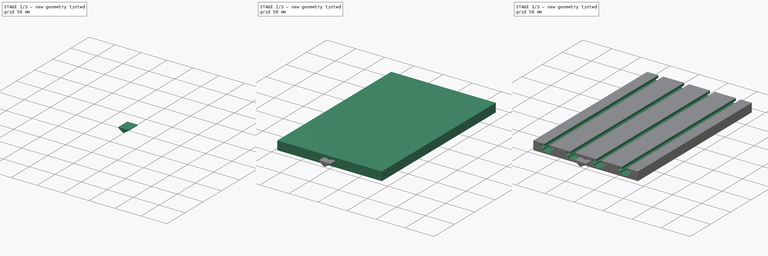
[diagram: build sequence overview — one tinted view per stage of 3, left to right]
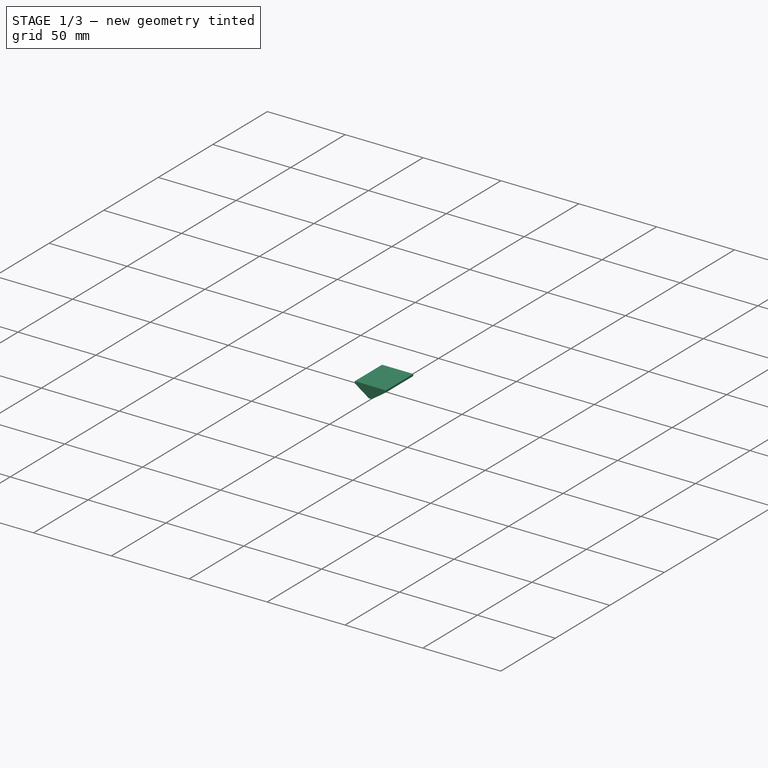
[diagram: stage 1 of 3 — iso view after this stage's code; geometry added in this stage tinted green]
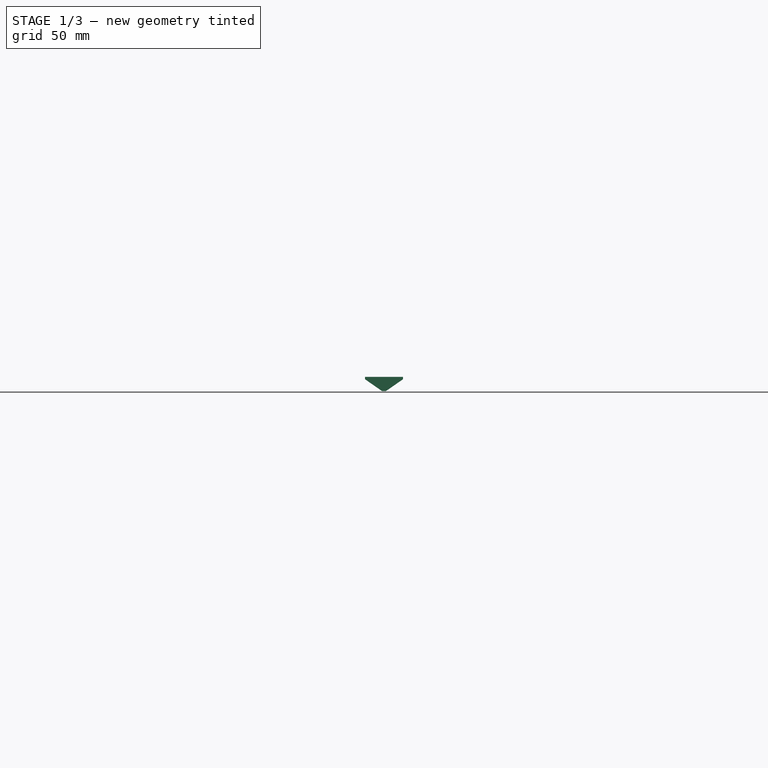
[diagram: stage 1 of 3 — front view after this stage's code; geometry added in this stage tinted green]
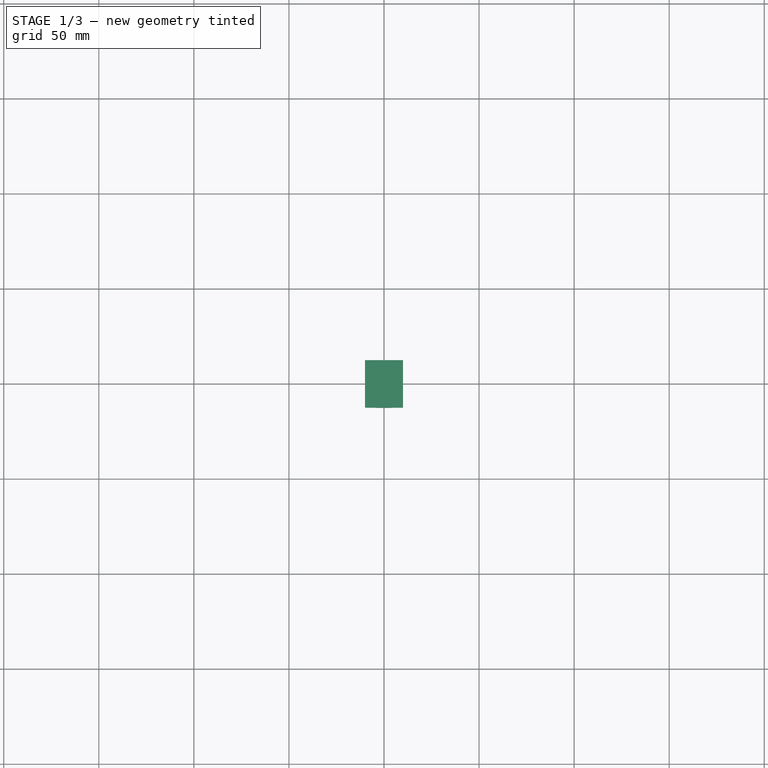
[diagram: stage 1 of 3 — top view after this stage's code; geometry added in this stage tinted green]
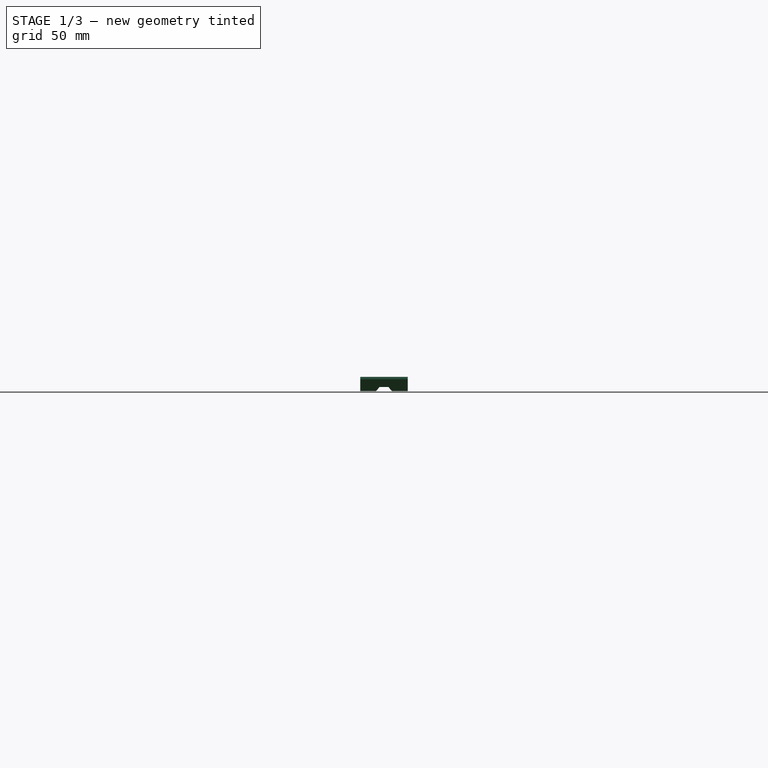
[diagram: stage 1 of 3 — right view after this stage's code; geometry added in this stage tinted green]
FCSTD DOCUMENT  (FreeCAD 0.18R4 (GitTag))
Label: cnc_m5_sliding_nut
License: All rights reserved
LicenseURL: http://en.wikipedia.org/wiki/All_rights_reserved
objects: Sketcher::SketchObject×5, PartDesign::Pocket×3, PartDesign::Pad×2, PartDesign::Body×2, PartDesign::LinearPattern×1, PartDesign::Chamfer×1
note: 19 computed .brp shape members not serialized (recipe doc carries the construction recipe); baked Part::Feature solids carry a one-line shape summary decoded from their .brp

FEATURE [PartDesign::Body] Body
  Group = -> [Sketch,Sketch001,Pad,Pocket,LinearPattern]
  Origin = -> Origin
  Tip = -> LinearPattern
FEATURE [Sketcher::SketchObject] Sketch002
  MapMode = 5
  Placement = pos=(0,0,0) rot=(1,0,0;1.5708rad)
  Support = -> [XZ_Plane001]
  sketch-geometry (8):
    g0: LineSegment StartX=-10 StartY=-5.73695 StartZ=0 EndX=-1 EndY=-12 EndZ=0
    g1: LineSegment StartX=-1 StartY=-12 StartZ=0 EndX=1 EndY=-12 EndZ=0
    g2: LineSegment StartX=1 StartY=-12 StartZ=0 EndX=10 EndY=-5.73695 EndZ=0
    g3: LineSegment StartX=10 StartY=-5.73695 StartZ=0 EndX=10 EndY=-4.5 EndZ=0
    g4: LineSegment StartX=10 StartY=-4.5 StartZ=0 EndX=-10 EndY=-4.5 EndZ=0
    g5: LineSegment StartX=-10 StartY=-4.5 StartZ=0 EndX=-10 EndY=-5.73695 EndZ=0
    g6: LineSegment [constr] StartX=-1 StartY=-12 StartZ=0 EndX=0 EndY=0 EndZ=0
    g7: LineSegment [constr] StartX=0 StartY=0 StartZ=0 EndX=1 EndY=-12 EndZ=0
  constraints (21):
    c: Coincident(g0,g1)
    c: Horizontal(g1)
    c: Coincident(g1,g2)
    c: Coincident(g2,g3)
    c: Coincident(g3,g4)
    c: Horizontal(g4)
    c: Coincident(g4,g5)
    c: Coincident(g5,g0)
    c: Vertical(g5)
    c: Vertical(g3)
    c: Equal(g3,g5)
    c: Equal(g0,g2)
    c: Coincident(g6,g0)
    c: Coincident(g6,g-1)
    c: Coincident(g7,g-1)
    c: Coincident(g7,g1)
    c: Equal(g7,g6)
    c: DistanceY(g0,g-1) = 12
    c: DistanceX(g4,g4) = 20
    c: DistanceX(g1,g1) = 2
    c: DistanceY(g4,g-1) = 4.5
FEATURE [PartDesign::Pad] Pad001
  Length = 25
  Length2 = 100
  Midplane = true
  Placement = pos=(0,0,0) rot=(1,0,0;1.5708rad)
  Profile = -> Sketch002
  Type = 0
FEATURE [Sketcher::SketchObject] Sketch003
  MapMode = 5
  Placement = pos=(0,-8e-15,-12) rot=(1,0,0;3.14159rad)
  Support = -> [Pad001]
  sketch-geometry (7):
    g0: LineSegment StartX=0 StartY=4.73427 StartZ=0 EndX=-4.1 EndY=2.36714 EndZ=0
    g1: LineSegment StartX=-4.1 StartY=2.36714 StartZ=0 EndX=-4.1 EndY=-2.36714 EndZ=0
    g2: LineSegment StartX=-4.1 StartY=-2.36714 StartZ=0 EndX=0 EndY=-4.73427 EndZ=0
    g3: LineSegment StartX=0 StartY=-4.73427 StartZ=0 EndX=4.1 EndY=-2.36714 EndZ=0
    g4: LineSegment StartX=4.1 StartY=-2.36714 StartZ=0 EndX=4.1 EndY=2.36714 EndZ=0
    g5: LineSegment StartX=4.1 StartY=2.36714 StartZ=0 EndX=0 EndY=4.73427 EndZ=0
    g6: Circle [constr] CenterX=0 CenterY=0 CenterZ=0 NormalX=0 NormalY=0 NormalZ=1 AngleXU=0 Radius=4.73427
  constraints (16):
    c: Coincident(g0,g1)
    c: Coincident(g1,g2)
    c: Coincident(g2,g3)
    c: Coincident(g3,g4)
    c: Coincident(g4,g5)
    c: Coincident(g5,g0)
    c: Equal(g0, g1-g5) x5
    c: PointOnObject(g0,g6)
    c: PointOnObject(g1,g6)
    c: PointOnObject(g2,g6)
    c: PointOnObject(g3,g6)
    c: PointOnObject(g4,g6)
    c: PointOnObject(g5,g6)
    c: Coincident(g6,g-1)
    c: PointOnObject(g5,g-2)
    c: DistanceX(g0,g4) = 8.2
FEATURE [PartDesign::Pocket] Pocket001
  BaseFeature = -> Pad001
  Length = 5.5
  Length2 = 100
  Placement = pos=(0,0,0) rot=(1,0,0;1.5708rad)
  Profile = -> Sketch003
  Type = 0
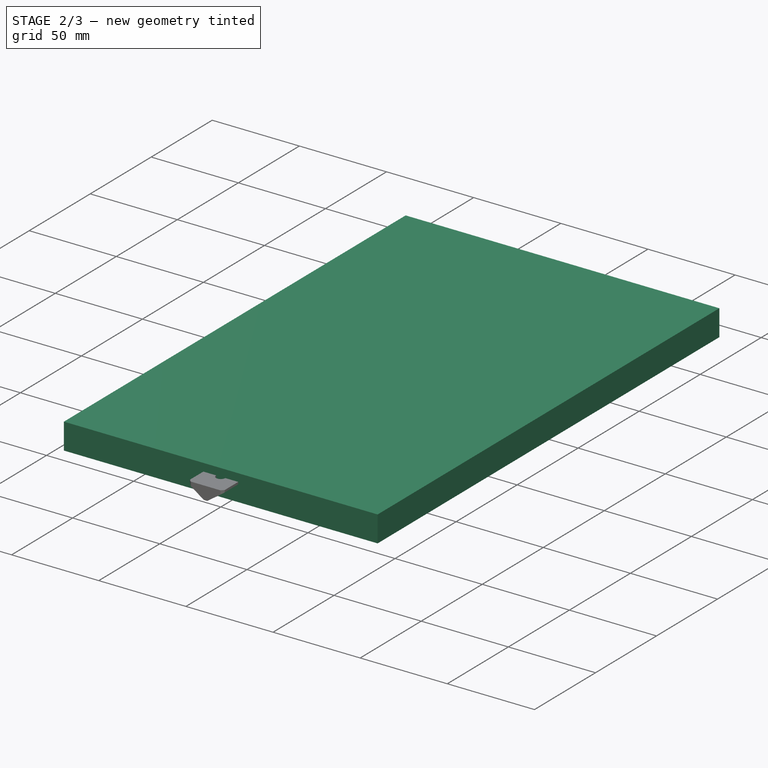
[diagram: stage 2 of 3 — iso view after this stage's code; geometry added in this stage tinted green]
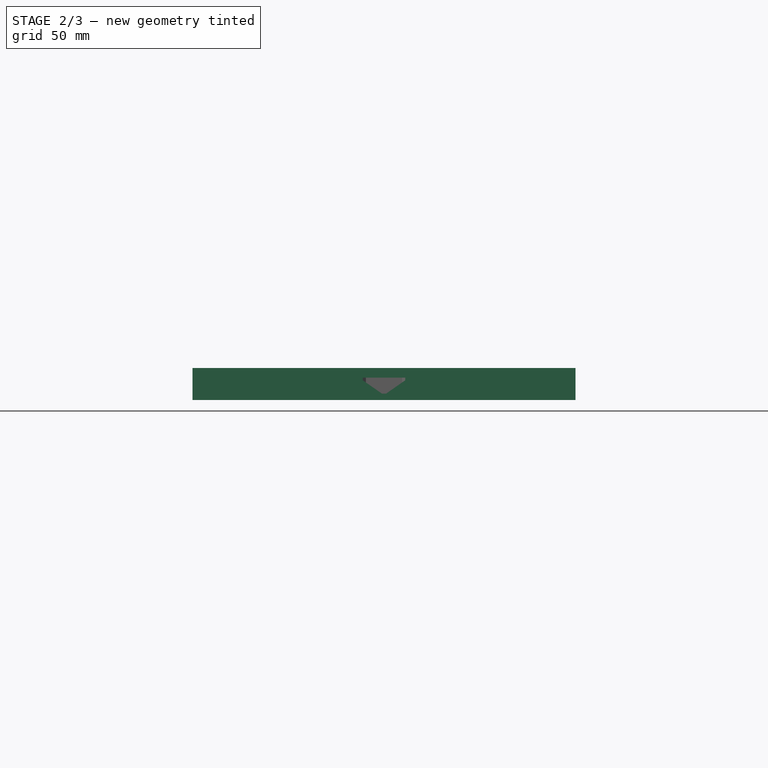
[diagram: stage 2 of 3 — front view after this stage's code; geometry added in this stage tinted green]
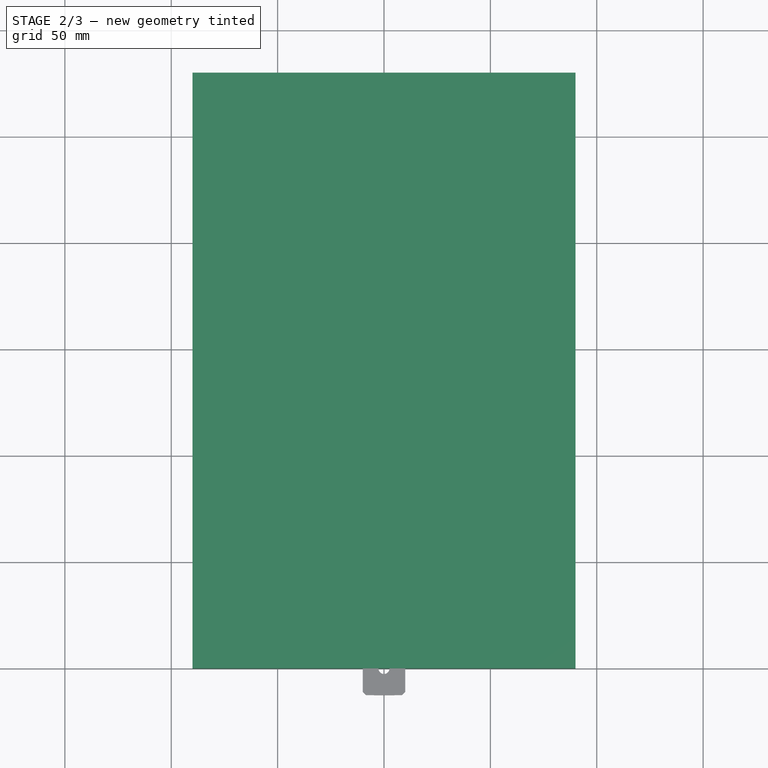
[diagram: stage 2 of 3 — top view after this stage's code; geometry added in this stage tinted green]
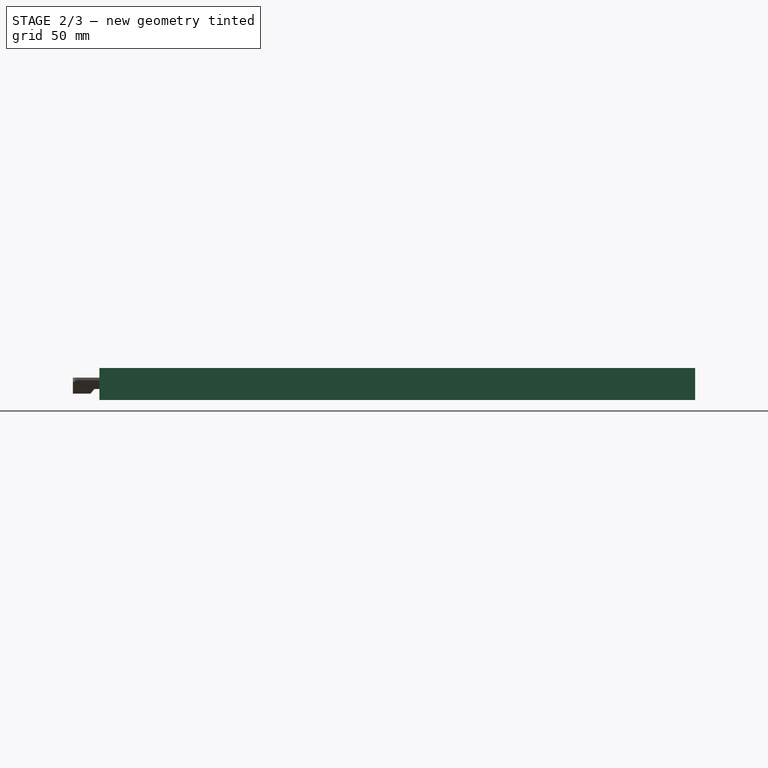
[diagram: stage 2 of 3 — right view after this stage's code; geometry added in this stage tinted green]
FEATURE [Sketcher::SketchObject] Sketch
  MapMode = 5
  Placement = pos=(0,0,0) rot=(1,0,0;1.5708rad)
  Support = -> [XZ_Plane]
  expr: Constraints[66] = 44.45 / 2 * 3
  sketch-geometry (24):
    g0: LineSegment StartX=-70.825 StartY=0 StartZ=0 EndX=-70.825 EndY=-4.2 EndZ=0
    g1: LineSegment StartX=-70.825 StartY=-4.2 StartZ=0 EndX=-73.675 EndY=-4.2 EndZ=0
    g2: LineSegment StartX=-73.675 StartY=-4.2 StartZ=0 EndX=-73.675 EndY=-2.5 EndZ=0
    g3: LineSegment StartX=-73.675 StartY=-2.5 StartZ=0 EndX=-77.975 EndY=-2.5 EndZ=0
    g4: LineSegment StartX=-77.975 StartY=-2.5 StartZ=0 EndX=-77.975 EndY=-5.7 EndZ=0
    g5: LineSegment StartX=-77.975 StartY=-5.7 StartZ=0 EndX=-73.975 EndY=-8.8 EndZ=0
    g6: LineSegment StartX=-73.975 StartY=-8.8 StartZ=0 EndX=-73.975 EndY=-11.2 EndZ=0
    g7: LineSegment StartX=-73.975 StartY=-11.2 StartZ=0 EndX=-70.875 EndY=-11.2 EndZ=0
    g8: LineSegment StartX=-70.875 StartY=-11.2 StartZ=0 EndX=-68.375 EndY=-12.6 EndZ=0
    g9: LineSegment StartX=-68.375 StartY=-12.6 StartZ=0 EndX=-64.975 EndY=-12.6 EndZ=0
    g10: LineSegment StartX=-64.975 StartY=-12.6 StartZ=0 EndX=-62.475 EndY=-11.2 EndZ=0
    g11: LineSegment StartX=-62.475 StartY=-11.2 StartZ=0 EndX=-59.375 EndY=-11.2 EndZ=0
    g12: LineSegment StartX=-59.375 StartY=-11.2 StartZ=0 EndX=-59.375 EndY=-8.8 EndZ=0
    g13: LineSegment StartX=-59.375 StartY=-8.8 StartZ=0 EndX=-55.375 EndY=-5.7 EndZ=0
    g14: LineSegment StartX=-55.375 StartY=-5.7 StartZ=0 EndX=-55.375 EndY=-2.5 EndZ=0
    g15: LineSegment StartX=-55.375 StartY=-2.5 StartZ=0 EndX=-59.675 EndY=-2.5 EndZ=0
    g16: LineSegment StartX=-59.675 StartY=-2.5 StartZ=0 EndX=-59.675 EndY=-4.2 EndZ=0
    g17: LineSegment StartX=-59.675 StartY=-4.2 StartZ=0 EndX=-62.525 EndY=-4.2 EndZ=0
    g18: LineSegment StartX=-62.525 StartY=-4.2 StartZ=0 EndX=-62.525 EndY=0 EndZ=0
    g19: LineSegment [constr] StartX=-70.825 StartY=-4.2 StartZ=0 EndX=-66.675 EndY=0 EndZ=0
    g20: LineSegment [constr] StartX=-66.675 StartY=0 StartZ=0 EndX=-62.525 EndY=-4.2 EndZ=0
    g21: LineSegment [constr] StartX=-73.975 StartY=-8.8 StartZ=0 EndX=-66.675 EndY=0 EndZ=0
    g22: LineSegment [constr] StartX=-66.675 StartY=0 StartZ=0 EndX=-59.375 EndY=-8.8 EndZ=0
    g23: LineSegment StartX=-70.825 StartY=0 StartZ=0 EndX=-62.525 EndY=0 EndZ=0
  constraints (69):
    c: PointOnObject(g0,g-1)
    c: Coincident(g0,g1)
    c: Horizontal(g1)
    c: Coincident(g1,g2)
    c: Vertical(g2)
    c: Coincident(g2,g3)
    c: Horizontal(g3)
    c: Coincident(g3,g4)
    c: Vertical(g4)
    c: Coincident(g4,g5)
    c: Coincident(g5,g6)
    c: Vertical(g6)
    c: Coincident(g6,g7)
    c: Horizontal(g7)
    c: Coincident(g7,g8)
    c: Coincident(g8,g9)
    c: Horizontal(g9)
    c: Coincident(g9,g10)
    c: Coincident(g10,g11)
    c: Horizontal(g11)
    c: Coincident(g11,g12)
    c: Vertical(g12)
    c: Coincident(g12,g13)
    c: Coincident(g13,g14)
    c: Vertical(g14)
    c: Coincident(g14,g15)
    c: Horizontal(g15)
    c: Coincident(g15,g16)
    c: Vertical(g16)
    c: Coincident(g16,g17)
    c: Horizontal(g17)
    c: Coincident(g17,g18)
    c: PointOnObject(g18,g-1)
    c: Vertical(g18)
    c: Vertical(g0)
    c: Equal(g0,g18)
    c: Equal(g17,g1)
    c: Coincident(g0,g19)
    c: PointOnObject(g19,g-1)
    c: Coincident(g19,g20)
    c: Coincident(g20,g17)
    c: Equal(g19,g20)
    c: DistanceX(g0,g18) = 8.3
    c: Equal(g2,g16)
    c: Equal(g15,g3)
    c: Equal(g4,g14)
    c: Equal(g5,g13)
    c: Coincident(g5,g21)
    c: Coincident(g21,g19)
    c: Coincident(g21,g22)
    c: Coincident(g22,g12)
    c: Equal(g21,g22)
    c: Equal(g6,g12)
    c: Equal(g7,g11)
    c: Equal(g8,g10)
    c: DistanceX(g3,g14) = 22.6
    c: DistanceX(g1,g16) = 14
    c: DistanceY(g8,g19) = 12.6
    c: DistanceX(g5,g12) = 14.6
    c: DistanceY(g7,g19) = 11.2
    c: DistanceX(g7,g10) = 8.4
    c: DistanceX(g9,g9) = 3.4
    c: DistanceY(g3,g19) = 2.5
    c: DistanceY(g0,g0) = 4.2
    c: DistanceY(g6,g6) = 2.4
    c: DistanceY(g4,g4) = 3.2
    c: DistanceX(g19,g-1) = 66.675
    c: Coincident(g23,g0)
    c: Coincident(g23,g18)
FEATURE [Sketcher::SketchObject] Sketch001
  MapMode = 5
  Placement = pos=(0,0,0) rot=(1,0,0;1.5708rad)
  Support = -> [XZ_Plane]
  sketch-geometry (6):
    g0: LineSegment StartX=-90 StartY=0 StartZ=0 EndX=90 EndY=0 EndZ=0
    g1: LineSegment StartX=90 StartY=0 StartZ=0 EndX=90 EndY=-15 EndZ=0
    g2: LineSegment StartX=90 StartY=-15 StartZ=0 EndX=-90 EndY=-15 EndZ=0
    g3: LineSegment StartX=-90 StartY=-15 StartZ=0 EndX=-90 EndY=0 EndZ=0
    g4: LineSegment [constr] StartX=-90 StartY=-15 StartZ=0 EndX=0 EndY=0 EndZ=0
    g5: LineSegment [constr] StartX=0 StartY=0 StartZ=0 EndX=90 EndY=-15 EndZ=0
  constraints (16):
    c: Coincident(g0,g1)
    c: Coincident(g1,g2)
    c: Coincident(g2,g3)
    c: Coincident(g3,g0)
    c: Horizontal(g0)
    c: Horizontal(g2)
    c: Vertical(g1)
    c: Vertical(g3)
    c: PointOnObject(g0,g-1)
    c: Coincident(g2,g4)
    c: Coincident(g4,g-1)
    c: Coincident(g4,g5)
    c: Coincident(g5,g1)
    c: Equal(g5,g4)
    c: DistanceY(g3,g3) = 15
    c: DistanceX(g0,g0) = 180
FEATURE [PartDesign::Pad] Pad
  Length = 280
  Length2 = 100
  Placement = pos=(0,0,0) rot=(1,0,0;1.5708rad)
  Profile = -> Sketch001
  Reversed = true
  Type = 0
FEATURE [Sketcher::SketchObject] Sketch004
  MapMode = 5
  Placement = pos=(0,-5e-15,-4.5) rot=(0,0,1;3.14159rad)
  Support = -> [Pocket001]
  sketch-geometry (1):
    g0: Circle CenterX=0 CenterY=0 CenterZ=0 NormalX=0 NormalY=0 NormalZ=1 AngleXU=0 Radius=2.6
  constraints (2):
    c: Coincident(g0,g-1)
    c: Diameter(g0) = 5.2
FEATURE [PartDesign::Pocket] Pocket002
  BaseFeature = -> Pocket001
  Length = 5
  Length2 = 100
  Placement = pos=(0,0,0) rot=(1,0,0;1.5708rad)
  Profile = -> Sketch004
  Type = 0
FEATURE [PartDesign::Chamfer] Chamfer
  Base = -> Pocket002 [Edge31,Edge29,Edge13,Edge11]
  BaseFeature = -> Pocket002
  Placement = pos=(0,0,0) rot=(1,0,0;1.5708rad)
  Size = 1.5
FEATURE [PartDesign::Body] Body001
  Group = -> [Sketch002,Pad001,Sketch003,Pocket001,Sketch004,Pocket002,Chamfer]
  Origin = -> Origin001
  Placement = pos=(22.225,0,0) rot=(0,0,1;0rad)
  Tip = -> Chamfer
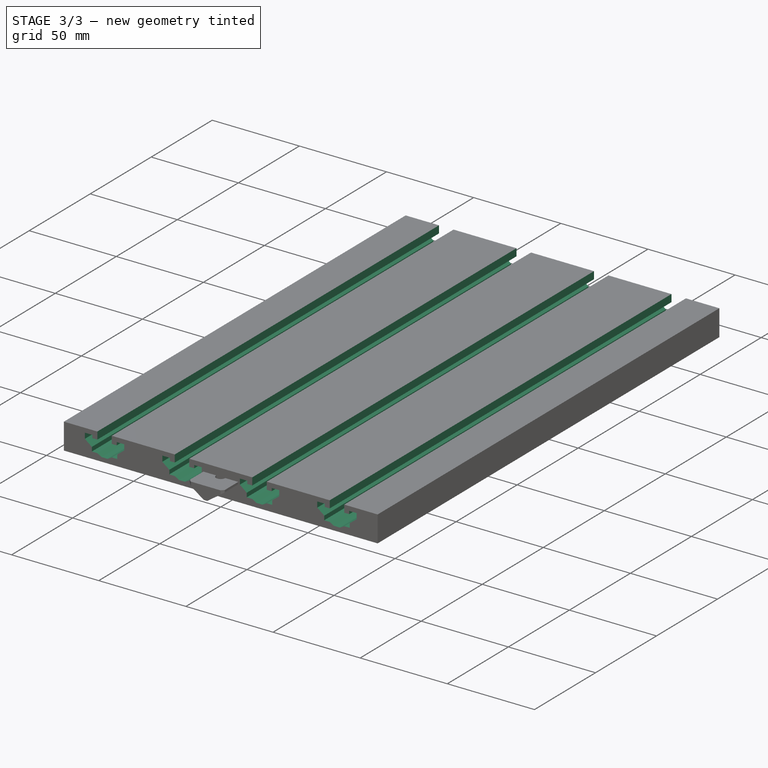
[diagram: stage 3 of 3 — iso view after this stage's code; geometry added in this stage tinted green]
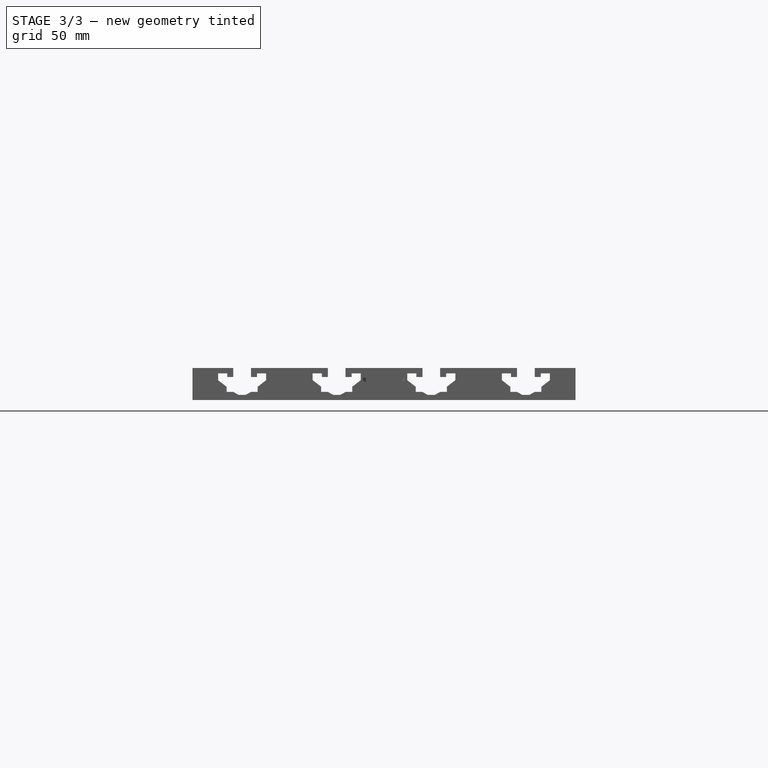
[diagram: stage 3 of 3 — front view after this stage's code; geometry added in this stage tinted green]
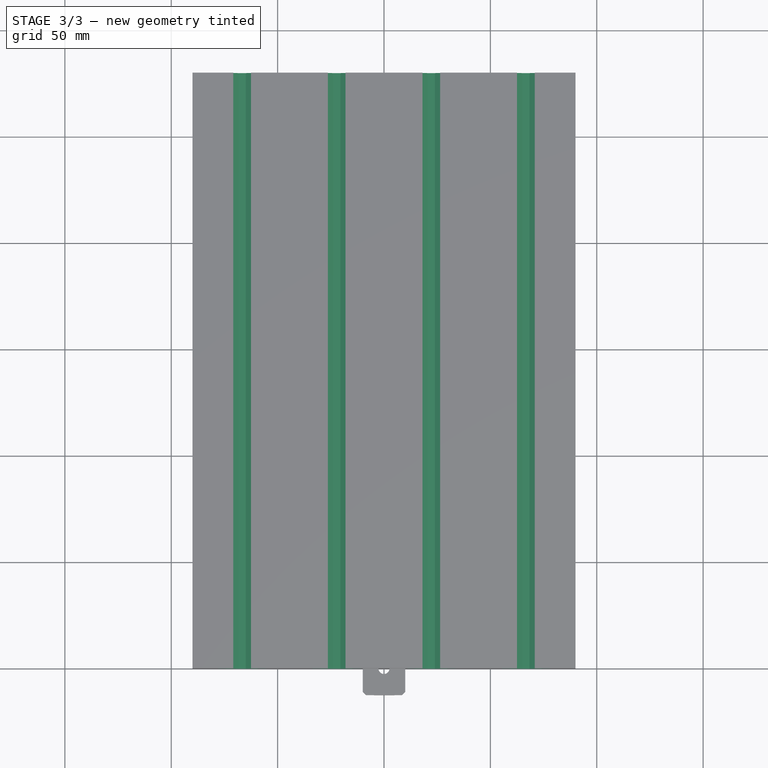
[diagram: stage 3 of 3 — top view after this stage's code; geometry added in this stage tinted green]
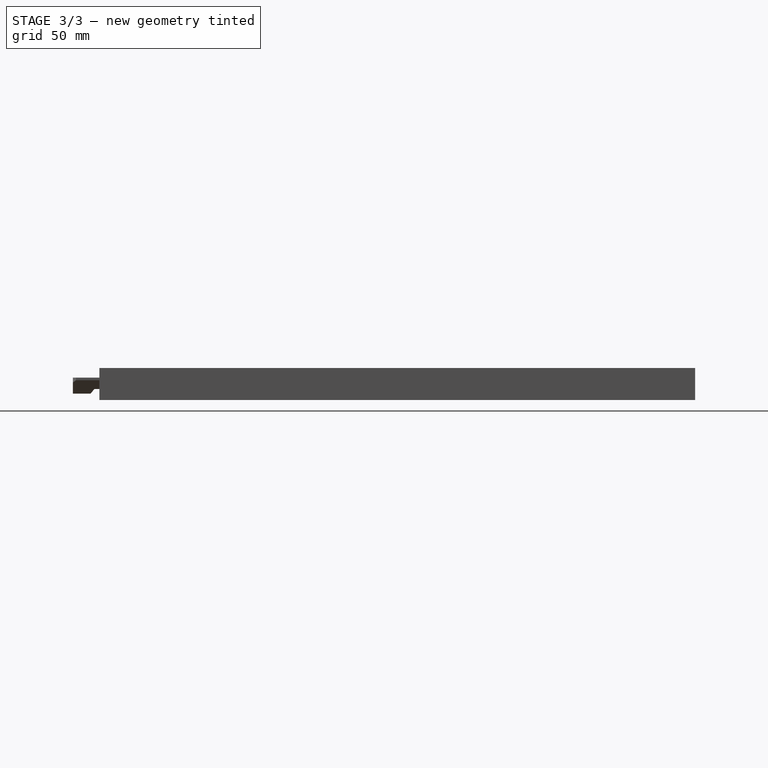
[diagram: stage 3 of 3 — right view after this stage's code; geometry added in this stage tinted green]
FEATURE [PartDesign::Pocket] Pocket
  BaseFeature = -> Pad
  Length = 5
  Length2 = 100
  Placement = pos=(0,0,0) rot=(1,0,0;1.5708rad)
  Profile = -> Sketch
  Type = 1
FEATURE [PartDesign::LinearPattern] LinearPattern
  BaseFeature = -> Pocket
  Direction = -> X_Axis
  Length = 133.35
  Occurrences = 4
  Originals = -> [Pocket]
  Placement = pos=(0,0,0) rot=(1,0,0;1.5708rad)
  expr: Length = 44.45 * 3
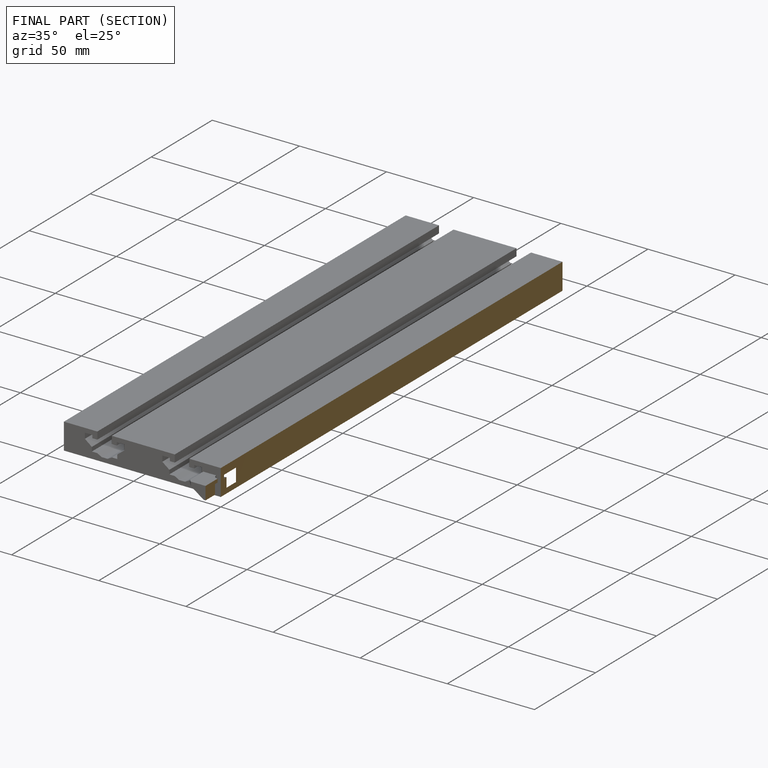
[diagram: finished part — half-section view (interior)]
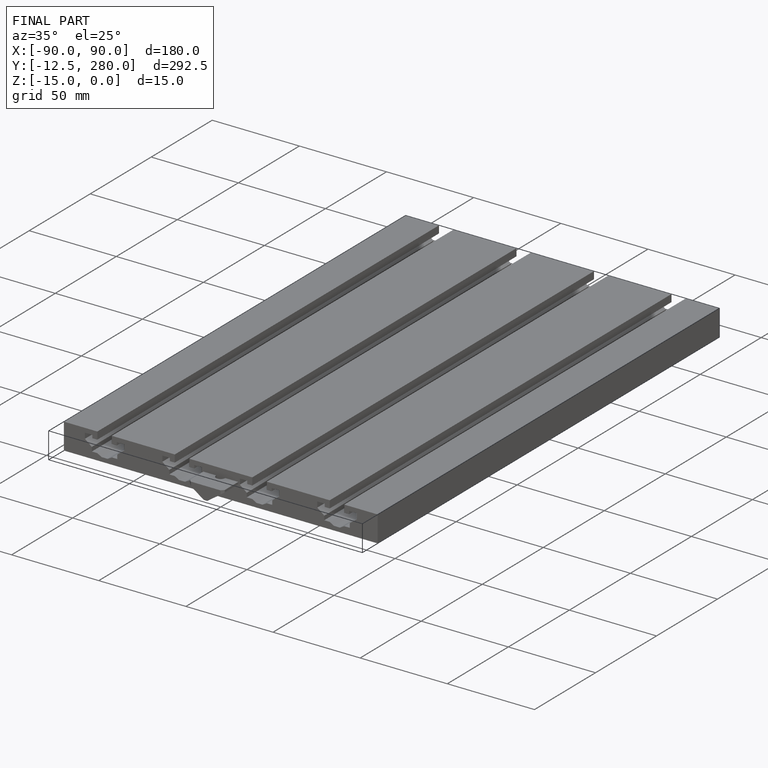
[diagram: finished part — iso view with bounding-box wireframe]
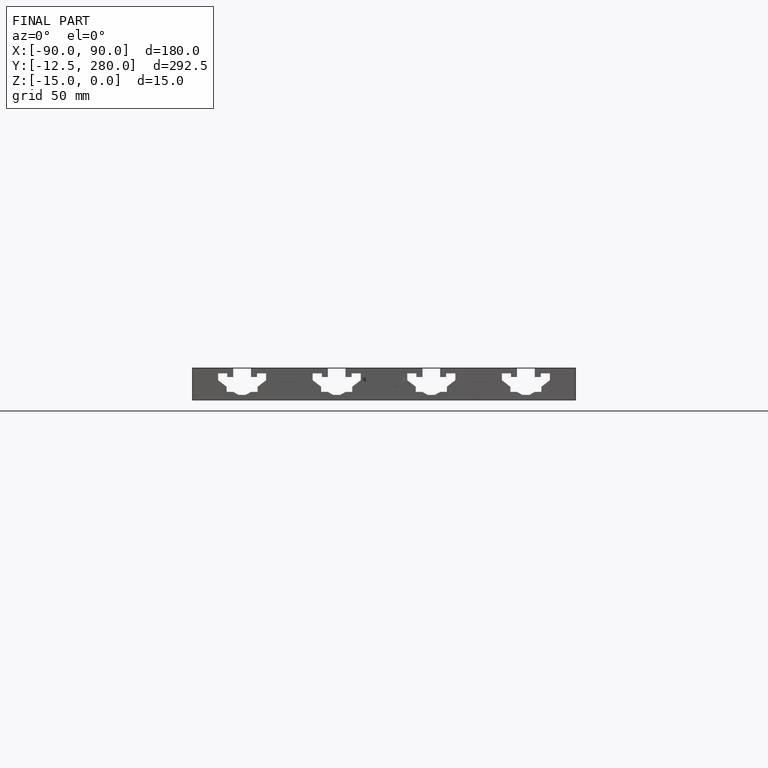
[diagram: finished part — front view with bounding-box wireframe]
